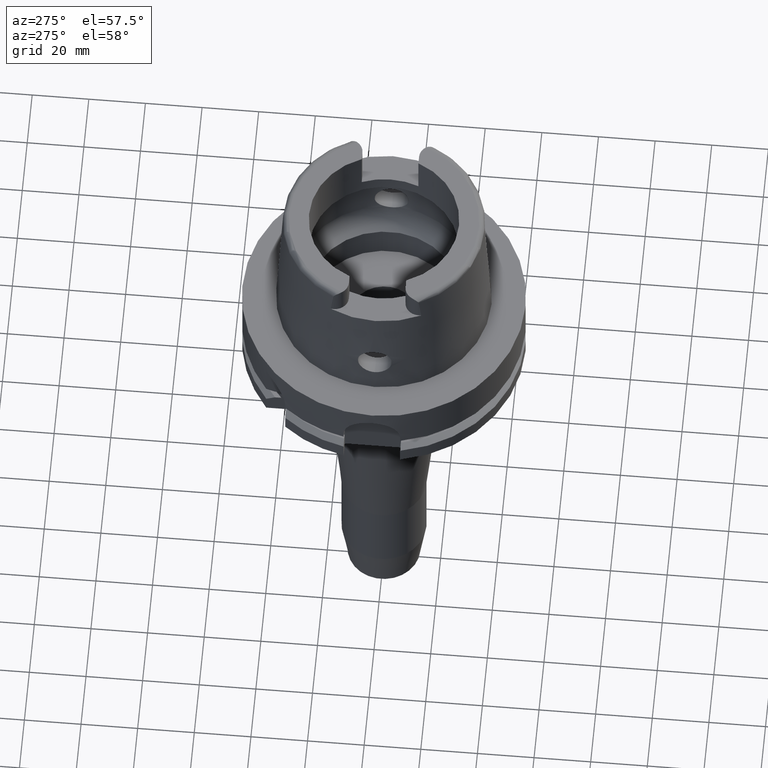
[diagram: clean part render]
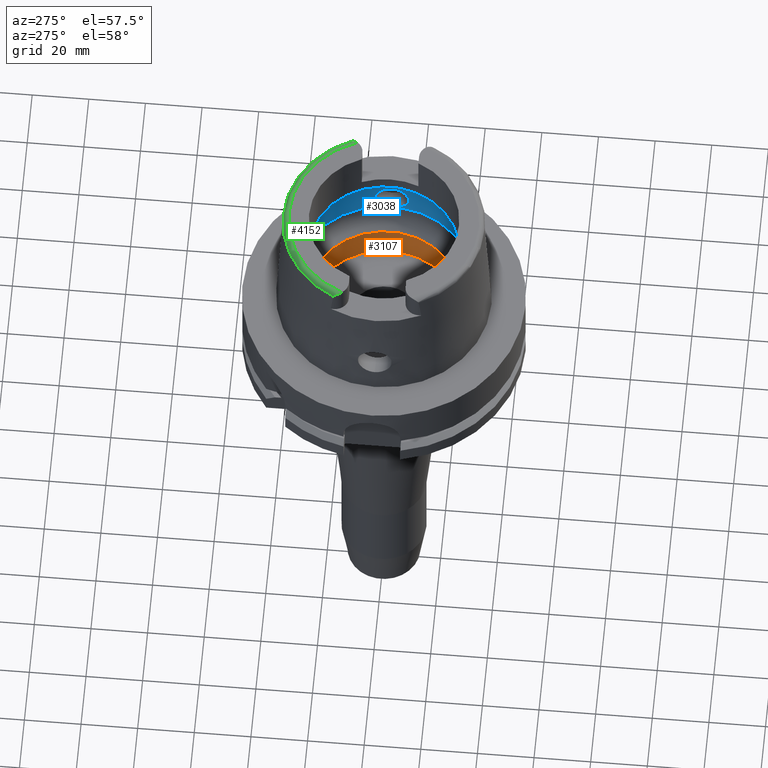
[diagram: same view with three faces highlighted in distinct colors, each labeled with its STEP entity id]
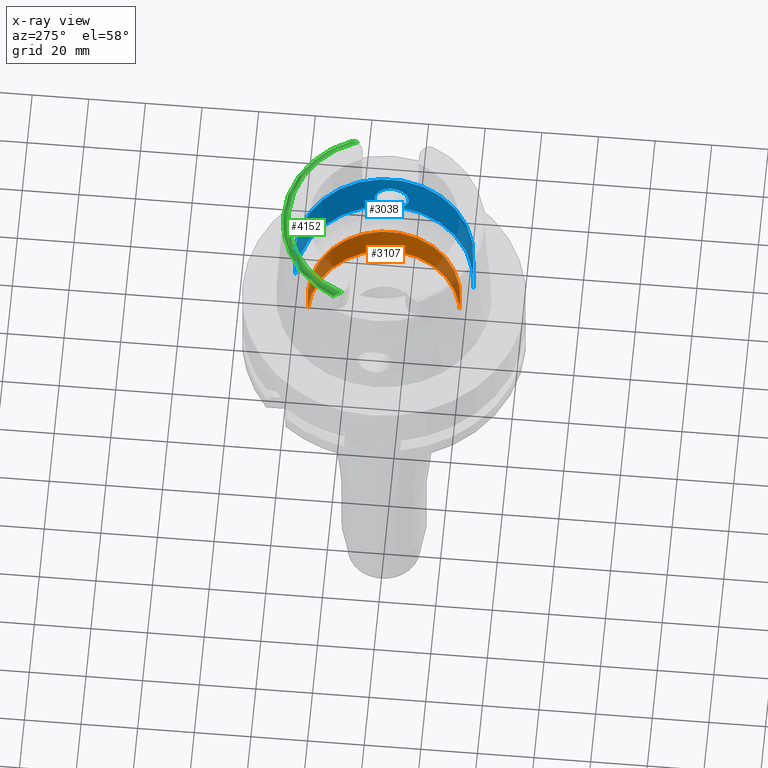
[diagram: x-ray of the same camera — body ghosted, the three highlighted faces saturated]
A machine part, auxiliary view with three faces highlighted in distinct colors.
The next image is the same camera in x-ray (body ghosted, the three faces saturated) — at least one of them is partly hidden behind the body in this view.
Their STEP definitions:

[orange] entity #3107 — the highlighted cylindrical surface (partial cylindrical patch) has radius 26.9 mm, axis along (0, 0, 1).
#792=CARTESIAN_POINT('',(0.E0,0.E0,0.E0));
#793=DIRECTION('',(0.E0,0.E0,1.E0));
#794=DIRECTION('',(0.E0,-1.E0,0.E0));
#795=AXIS2_PLACEMENT_3D('',#792,#793,#794);
#807=DIRECTION('',(0.E0,0.E0,1.E0));
#808=VECTOR('',#807,1.245E1);
#809=CARTESIAN_POINT('',(0.E0,-2.69E1,-1.245E1));
#810=LINE('',#809,#808);
#822=DIRECTION('',(0.E0,0.E0,1.E0));
#823=VECTOR('',#822,1.245E1);
#824=CARTESIAN_POINT('',(0.E0,2.69E1,-1.245E1));
#825=LINE('',#824,#823);
#837=CARTESIAN_POINT('',(0.E0,0.E0,-1.245E1));
#838=DIRECTION('',(0.E0,0.E0,-1.E0));
#839=DIRECTION('',(0.E0,1.E0,0.E0));
#840=AXIS2_PLACEMENT_3D('',#837,#838,#839);
#2357=CARTESIAN_POINT('',(0.E0,2.69E1,0.E0));
#2358=VERTEX_POINT('',#2357);
#2359=CARTESIAN_POINT('',(0.E0,-2.69E1,0.E0));
#2360=VERTEX_POINT('',#2359);
#2361=CARTESIAN_POINT('',(0.E0,2.69E1,-1.245E1));
#2362=VERTEX_POINT('',#2361);
#2363=CARTESIAN_POINT('',(0.E0,-2.69E1,-1.245E1));
#2364=VERTEX_POINT('',#2363);
#3095=CARTESIAN_POINT('',(0.E0,0.E0,-1.7575E2));
#3096=DIRECTION('',(0.E0,0.E0,1.E0));
#3097=DIRECTION('',(0.E0,1.E0,0.E0));
#3098=AXIS2_PLACEMENT_3D('',#3095,#3096,#3097);
#3099=CYLINDRICAL_SURFACE('',#3098,2.69E1);
#3100=ORIENTED_EDGE('',*,*,#3085,.T.);
#3101=ORIENTED_EDGE('',*,*,#3062,.F.);
#3102=ORIENTED_EDGE('',*,*,#3089,.F.);
#3104=ORIENTED_EDGE('',*,*,#3103,.F.);
#3105=EDGE_LOOP('',(#3100,#3101,#3102,#3104));
#3106=FACE_OUTER_BOUND('',#3105,.F.);
#796=CIRCLE('',#795,2.69E1);
#841=CIRCLE('',#840,2.69E1);
#3062=EDGE_CURVE('',#2360,#2358,#796,.T.);
#3085=EDGE_CURVE('',#2362,#2358,#825,.T.);
#3089=EDGE_CURVE('',#2364,#2360,#810,.T.);
#3103=EDGE_CURVE('',#2362,#2364,#841,.T.);
#3107=ADVANCED_FACE('',(#3106),#3099,.F.);

[blue] entity #3038 — the highlighted cylindrical surface (partial cylindrical patch) has radius 31.5 mm, axis along (0, 0, 1).
#536=CARTESIAN_POINT('',(0.E0,0.E0,2.711662432703E1));
#537=DIRECTION('',(0.E0,0.E0,1.E0));
#538=DIRECTION('',(0.E0,-1.E0,0.E0));
#539=AXIS2_PLACEMENT_3D('',#536,#537,#538);
#585=DIRECTION('',(0.E0,5.000414258470E-14,1.E0));
#586=VECTOR('',#585,1.762E1);
#587=CARTESIAN_POINT('',(0.E0,-3.15E1,9.496624327026E0));
#588=LINE('',#587,#586);
#686=CARTESIAN_POINT('',(0.E0,0.E0,9.496624327026E0));
#687=DIRECTION('',(0.E0,0.E0,-1.E0));
#688=DIRECTION('',(9.971171061384E-1,-7.587803796965E-2,0.E0));
#689=AXIS2_PLACEMENT_3D('',#686,#687,#688);
#710=CARTESIAN_POINT('',(0.E0,0.E0,9.496624327026E0));
#711=DIRECTION('',(0.E0,0.E0,-1.E0));
#712=DIRECTION('',(0.E0,1.E0,0.E0));
#713=AXIS2_PLACEMENT_3D('',#710,#711,#712);
#735=CARTESIAN_POINT('',(3.140918884336E1,-2.390158196044E0,9.496624327026E0));
#736=CARTESIAN_POINT('',(3.137370284659E1,-2.856481461010E0,9.699152091801E0));
#737=CARTESIAN_POINT('',(3.128859474453E1,-3.707400145346E0,1.020433824448E1));
#738=CARTESIAN_POINT('',(3.113928099984E1,-4.784492553653E0,1.127536880454E1));
#739=CARTESIAN_POINT('',(3.100881912169E1,-5.551490012943E0,1.256688766916E1));
#740=CARTESIAN_POINT('',(3.092778419711E1,-5.977993215389E0,1.399743542080E1));
#741=CARTESIAN_POINT('',(3.091518771352E1,-6.041374145570E0,1.549305405197E1));
#742=CARTESIAN_POINT('',(3.097430983652E1,-5.737293320473E0,1.695757698452E1));
#743=CARTESIAN_POINT('',(3.109203742567E1,-5.076006323066E0,1.831579404761E1));
#744=CARTESIAN_POINT('',(3.123897485970E1,-4.097830971331E0,1.946762004123E1));
#745=CARTESIAN_POINT('',(3.137831011200E1,-2.871978416125E0,2.033914448703E1));
#746=CARTESIAN_POINT('',(3.147664429815E1,-1.469940970168E0,2.087917017838E1));
#747=CARTESIAN_POINT('',(3.15E1,-5.000265199680E-1,2.1E1));
#748=CARTESIAN_POINT('',(3.15E1,0.E0,2.1E1));
#753=CARTESIAN_POINT('',(3.15E1,0.E0,2.1E1));
#754=CARTESIAN_POINT('',(3.15E1,5.029119195974E-1,2.1E1));
#755=CARTESIAN_POINT('',(3.147637481607E1,1.477572854986E0,2.087779123833E1));
#756=CARTESIAN_POINT('',(3.137725459066E1,2.883876280390E0,2.033316137464E1));
#757=CARTESIAN_POINT('',(3.123731083332E1,4.110405734289E0,1.945636337079E1));
#758=CARTESIAN_POINT('',(3.109031368610E1,5.086357039737E0,1.830005087919E1));
#759=CARTESIAN_POINT('',(3.097316298175E1,5.743339975134E0,1.693960888538E1));
#760=CARTESIAN_POINT('',(3.091492818840E1,6.042674180618E0,1.547524432273E1));
#761=CARTESIAN_POINT('',(3.092834596188E1,5.975139974964E0,1.398185818563E1));
#762=CARTESIAN_POINT('',(3.100979198357E1,5.546121169298E0,1.255536329905E1));
#763=CARTESIAN_POINT('',(3.114017301620E1,4.778633834378E0,1.126840905464E1));
#764=CARTESIAN_POINT('',(3.128902322664E1,3.703485308848E0,1.020177646228E1));
#765=CARTESIAN_POINT('',(3.137382032916E1,2.854937616644E0,9.698481588371E0));
#766=CARTESIAN_POINT('',(3.140918884336E1,2.390158196044E0,9.496624327026E0));
#771=DIRECTION('',(0.E0,-5.000414258470E-14,1.E0));
#772=VECTOR('',#771,1.762E1);
#773=CARTESIAN_POINT('',(0.E0,3.15E1,9.496624327026E0));
#774=LINE('',#773,#772);
#2335=CARTESIAN_POINT('',(0.E0,3.15E1,2.711662432703E1));
#2336=VERTEX_POINT('',#2335);
#2337=CARTESIAN_POINT('',(0.E0,-3.15E1,2.711662432703E1));
#2338=VERTEX_POINT('',#2337);
#2341=CARTESIAN_POINT('',(0.E0,-3.15E1,9.496624327026E0));
#2342=VERTEX_POINT('',#2341);
#2343=CARTESIAN_POINT('',(0.E0,3.15E1,9.496624327026E0));
#2344=VERTEX_POINT('',#2343);
#2349=VERTEX_POINT('',#735);
#2350=VERTEX_POINT('',#748);
#2352=VERTEX_POINT('',#766);
#3023=CARTESIAN_POINT('',(0.E0,0.E0,-1.7575E2));
#3024=DIRECTION('',(0.E0,0.E0,1.E0));
#3025=DIRECTION('',(0.E0,1.E0,0.E0));
#3026=AXIS2_PLACEMENT_3D('',#3023,#3024,#3025);
#3027=CYLINDRICAL_SURFACE('',#3026,3.15E1);
#3028=ORIENTED_EDGE('',*,*,#3012,.T.);
#3030=ORIENTED_EDGE('',*,*,#3029,.T.);
#3031=ORIENTED_EDGE('',*,*,#3000,.F.);
#3032=ORIENTED_EDGE('',*,*,#2930,.T.);
#3033=ORIENTED_EDGE('',*,*,#2900,.F.);
#3034=ORIENTED_EDGE('',*,*,#2927,.F.);
#3035=ORIENTED_EDGE('',*,*,#2994,.F.);
#3036=EDGE_LOOP('',(#3028,#3030,#3031,#3032,#3033,#3034,#3035));
#3037=FACE_OUTER_BOUND('',#3036,.F.);
#540=CIRCLE('',#539,3.15E1);
#690=CIRCLE('',#689,3.15E1);
#714=CIRCLE('',#713,3.15E1);
#749=B_SPLINE_CURVE_WITH_KNOTS('',3,(#735,#736,#737,#738,#739,#740,#741,#742,
#743,#744,#745,#746,#747,#748),.UNSPECIFIED.,.F.,.F.,(4,1,1,1,1,1,1,1,1,1,1,4),(
0.E0,9.090909090909E-2,1.818181818182E-1,2.727272727273E-1,3.636363636364E-1,
4.545454545455E-1,5.454545454545E-1,6.363636363636E-1,7.272727272727E-1,
8.181818181818E-1,9.090909090909E-1,1.E0),.UNSPECIFIED.);
#767=B_SPLINE_CURVE_WITH_KNOTS('',3,(#753,#754,#755,#756,#757,#758,#759,#760,
#761,#762,#763,#764,#765,#766),.UNSPECIFIED.,.F.,.F.,(4,1,1,1,1,1,1,1,1,1,1,4),(
0.E0,9.090909090909E-2,1.818181818182E-1,2.727272727273E-1,3.636363636364E-1,
4.545454545455E-1,5.454545454545E-1,6.363636363636E-1,7.272727272727E-1,
8.181818181818E-1,9.090909090909E-1,1.E0),.UNSPECIFIED.);
#2900=EDGE_CURVE('',#2338,#2336,#540,.T.);
#2927=EDGE_CURVE('',#2342,#2338,#588,.T.);
#2930=EDGE_CURVE('',#2344,#2336,#774,.T.);
#2994=EDGE_CURVE('',#2349,#2342,#690,.T.);
#3000=EDGE_CURVE('',#2344,#2352,#714,.T.);
#3012=EDGE_CURVE('',#2349,#2350,#749,.T.);
#3029=EDGE_CURVE('',#2350,#2352,#767,.T.);
#3038=ADVANCED_FACE('',(#3037),#3027,.F.);

[green] entity #4152 — the highlighted toroidal blend (fillet) surface has major radius 33.5974 mm and minor (blend) radius 2 mm.
#26=CARTESIAN_POINT('',(0.E0,0.E0,5.E1));
#27=DIRECTION('',(0.E0,0.E0,-1.E0));
#28=DIRECTION('',(-9.332215253018E-1,3.593015233942E-1,0.E0));
#29=AXIS2_PLACEMENT_3D('',#26,#27,#28);
#2181=CARTESIAN_POINT('',(-3.135385269249E1,1.207161079257E1,5.E1));
#2182=CARTESIAN_POINT('',(-3.142526512838E1,1.217255377953E1,5.E1));
#2183=CARTESIAN_POINT('',(-3.156730839123E1,1.238896970757E1,4.998464397632E1));
#2184=CARTESIAN_POINT('',(-3.177575676746E1,1.277572691454E1,4.990204644269E1));
#2185=CARTESIAN_POINT('',(-3.194756124155E1,1.318046895742E1,4.976415661633E1));
#2186=CARTESIAN_POINT('',(-3.207546796834E1,1.357685297499E1,4.958508301795E1));
#2187=CARTESIAN_POINT('',(-3.215905712653E1,1.393205488097E1,4.938754393468E1));
#2188=CARTESIAN_POINT('',(-3.221007609173E1,1.424470716333E1,4.918012209755E1));
#2189=CARTESIAN_POINT('',(-3.223728167505E1,1.451084908926E1,4.896939591304E1));
#2190=CARTESIAN_POINT('',(-3.224870854753E1,1.473150176316E1,4.875542600294E1));
#2191=CARTESIAN_POINT('',(-3.225E1,1.484287547534E1,4.861560875053E1));
#2192=CARTESIAN_POINT('',(-3.225E1,1.489E1,4.854599893822E1));
#2197=CARTESIAN_POINT('',(-3.225E1,1.489E1,4.854599893822E1));
#2198=CARTESIAN_POINT('',(-3.225E1,1.492391140174E1,4.849590684016E1));
#2199=CARTESIAN_POINT('',(-3.225000018245E1,1.498154795797E1,4.839573233883E1));
#2200=CARTESIAN_POINT('',(-3.224999936141E1,1.503932746382E1,4.824459161870E1));
#2201=CARTESIAN_POINT('',(-3.225000136841E1,1.505879362207E1,4.814764535904E1));
#2202=CARTESIAN_POINT('',(-3.225000136841E1,1.506443228419E1,4.809991920288E1));
#2207=CARTESIAN_POINT('',(0.E0,0.E0,4.809987853799E1));
#2208=DIRECTION('',(0.E0,0.E0,-1.E0));
#2209=DIRECTION('',(-9.060276961631E-1,4.232183996300E-1,0.E0));
#2210=AXIS2_PLACEMENT_3D('',#2207,#2208,#2209);
#2215=CARTESIAN_POINT('',(0.E0,0.E0,4.809987853799E1));
#2216=DIRECTION('',(0.E0,0.E0,-1.E0));
#2217=DIRECTION('',(0.E0,1.E0,0.E0));
#2218=AXIS2_PLACEMENT_3D('',#2215,#2216,#2217);
#2223=CARTESIAN_POINT('',(3.224998031234E1,1.506460254626E1,4.809931724634E1));
#2224=CARTESIAN_POINT('',(3.224998031234E1,1.505854174055E1,4.815061646477E1));
#2225=CARTESIAN_POINT('',(3.225000918757E1,1.503762297381E1,4.825052302865E1));
#2226=CARTESIAN_POINT('',(3.224999737498E1,1.497890643280E1,4.840088159285E1));
#2227=CARTESIAN_POINT('',(3.225E1,1.492253372077E1,4.849794187636E1));
#2228=CARTESIAN_POINT('',(3.225E1,1.489E1,4.854599893822E1));
#2233=CARTESIAN_POINT('',(3.225E1,1.489E1,4.854599893822E1));
#2234=CARTESIAN_POINT('',(3.225E1,1.484233728659E1,4.861640373399E1));
#2235=CARTESIAN_POINT('',(3.224866894580E1,1.472998270608E1,4.875710151814E1));
#2236=CARTESIAN_POINT('',(3.223716255324E1,1.450949351598E1,4.897051104878E1));
#2237=CARTESIAN_POINT('',(3.221001599433E1,1.424441210364E1,4.918029235868E1));
#2238=CARTESIAN_POINT('',(3.215912399422E1,1.393242413653E1,4.938731338261E1));
#2239=CARTESIAN_POINT('',(3.207548715482E1,1.357679416946E1,4.958515418322E1));
#2240=CARTESIAN_POINT('',(3.194713455543E1,1.317932750308E1,4.976460776751E1));
#2241=CARTESIAN_POINT('',(3.177564482088E1,1.277554595736E1,4.990206992589E1));
#2242=CARTESIAN_POINT('',(3.156718313285E1,1.238875188011E1,4.998468051269E1));
#2243=CARTESIAN_POINT('',(3.142522554167E1,1.217249782287E1,5.E1));
#2244=CARTESIAN_POINT('',(3.135385269249E1,1.207161079257E1,5.E1));
#2250=CARTESIAN_POINT('',(-3.135385269249E1,1.207161079257E1,5.E1));
#2252=VERTEX_POINT('',#2250);
#2253=CARTESIAN_POINT('',(3.135385269249E1,1.207161079257E1,5.E1));
#2254=VERTEX_POINT('',#2253);
#2281=CARTESIAN_POINT('',(-3.225E1,1.489E1,4.854599893822E1));
#2282=VERTEX_POINT('',#2281);
#2300=VERTEX_POINT('',#2202);
#2301=CARTESIAN_POINT('',(0.E0,3.559494289391E1,4.809987853799E1));
#2302=VERTEX_POINT('',#2301);
#2303=CARTESIAN_POINT('',(3.224994093704E1,1.506456999646E1,4.809987853799E1));
#2304=VERTEX_POINT('',#2303);
#2305=VERTEX_POINT('',#2228);
#4136=CARTESIAN_POINT('',(0.E0,0.E0,4.8E1));
#4137=DIRECTION('',(0.E0,0.E0,1.E0));
#4138=DIRECTION('',(-4.184165975220E-4,-9.999999124638E-1,0.E0));
#4139=AXIS2_PLACEMENT_3D('',#4136,#4137,#4138);
#4140=TOROIDAL_SURFACE('',#4139,3.359743838136E1,2.E0);
#4141=ORIENTED_EDGE('',*,*,#2611,.T.);
#4143=ORIENTED_EDGE('',*,*,#4142,.T.);
#4144=ORIENTED_EDGE('',*,*,#2769,.T.);
#4145=ORIENTED_EDGE('',*,*,#2791,.T.);
#4147=ORIENTED_EDGE('',*,*,#4146,.T.);
#4148=ORIENTED_EDGE('',*,*,#4127,.T.);
#4149=ORIENTED_EDGE('',*,*,#2584,.F.);
#4150=EDGE_LOOP('',(#4141,#4143,#4144,#4145,#4147,#4148,#4149));
#4151=FACE_OUTER_BOUND('',#4150,.F.);
#30=CIRCLE('',#29,3.359743838136E1);
#2193=B_SPLINE_CURVE_WITH_KNOTS('',3,(#2181,#2182,#2183,#2184,#2185,#2186,#2187,
#2188,#2189,#2190,#2191,#2192),.UNSPECIFIED.,.F.,.F.,(4,1,1,1,1,1,1,1,1,4),
(0.E0,1.111111111111E-1,2.222222222222E-1,3.333333333333E-1,4.444444444444E-1,
5.555555555556E-1,6.666666666667E-1,7.777777777778E-1,8.888888888889E-1,1.E0),
.UNSPECIFIED.);
#2203=B_SPLINE_CURVE_WITH_KNOTS('',3,(#2197,#2198,#2199,#2200,#2201,#2202),
.UNSPECIFIED.,.F.,.F.,(4,1,1,4),(0.E0,3.333333333333E-1,6.666666666667E-1,1.E0),
.UNSPECIFIED.);
#2211=CIRCLE('',#2210,3.559494289391E1);
#2219=CIRCLE('',#2218,3.559494289391E1);
#2229=B_SPLINE_CURVE_WITH_KNOTS('',3,(#2223,#2224,#2225,#2226,#2227,#2228),
.UNSPECIFIED.,.F.,.F.,(4,1,1,4),(0.E0,3.333333333333E-1,6.666666666667E-1,1.E0),
.UNSPECIFIED.);
#2245=B_SPLINE_CURVE_WITH_KNOTS('',3,(#2233,#2234,#2235,#2236,#2237,#2238,#2239,
#2240,#2241,#2242,#2243,#2244),.UNSPECIFIED.,.F.,.F.,(4,1,1,1,1,1,1,1,1,4),
(0.E0,1.111111111111E-1,2.222222222222E-1,3.333333333333E-1,4.444444444444E-1,
5.555555555556E-1,6.666666666667E-1,7.777777777778E-1,8.888888888889E-1,1.E0),
.UNSPECIFIED.);
#2584=EDGE_CURVE('',#2252,#2254,#30,.T.);
#2611=EDGE_CURVE('',#2252,#2282,#2193,.T.);
#2769=EDGE_CURVE('',#2300,#2302,#2211,.T.);
#2791=EDGE_CURVE('',#2302,#2304,#2219,.T.);
#4127=EDGE_CURVE('',#2305,#2254,#2245,.T.);
#4142=EDGE_CURVE('',#2282,#2300,#2203,.T.);
#4146=EDGE_CURVE('',#2304,#2305,#2229,.T.);
#4152=ADVANCED_FACE('',(#4151),#4140,.T.);